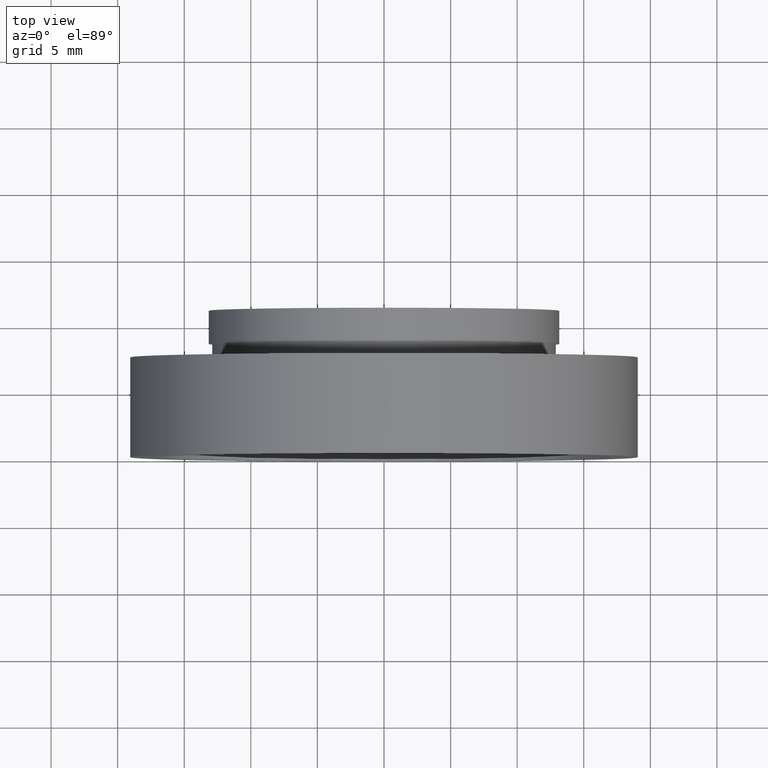
[diagram: clean part render]
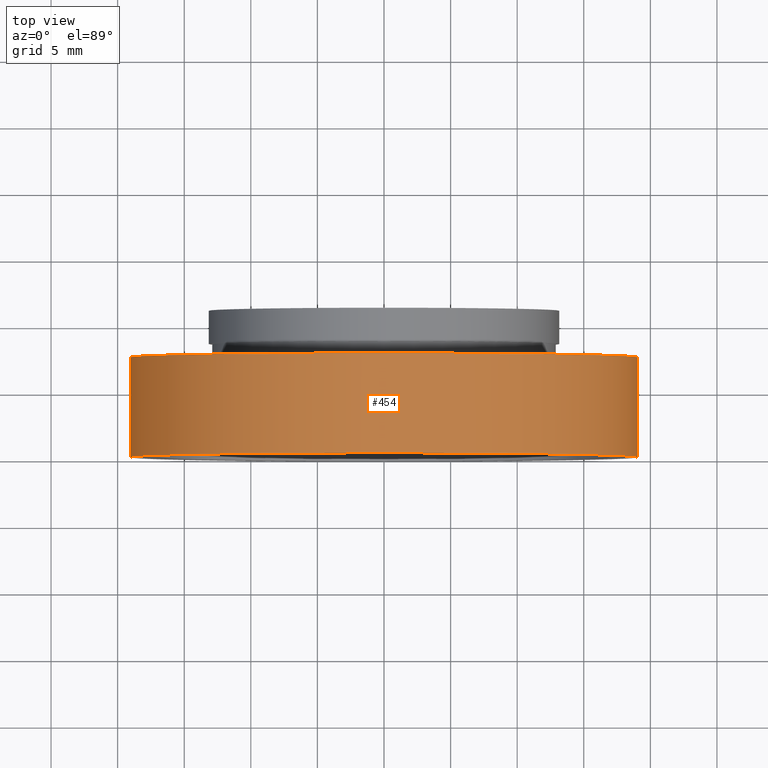
[diagram: same view with one face highlighted and labeled with its STEP entity id]
A machine part, top view. The second image highlights one B-rep face of the part: STEP entity #454.
In plain terms, the highlighted cylindrical surface (partial cylindrical patch) has radius 19.05 mm, axis along (-0, 1, -0).
Its self-contained STEP definition (entity closure, byte-faithful):
#4 = CIRCLE ( 'NONE', #327, 19.04999999999999700 ) ;
#13 = DIRECTION ( 'NONE',  ( -1.000000000000000000, -1.224646799147351000E-016, 0.0000000000000000000 ) ) ;
#26 = EDGE_CURVE ( 'NONE', #590, #112, #105, .T. ) ;
#32 = DIRECTION ( 'NONE',  ( -1.224646799147351000E-016, 1.000000000000000000, -0.0000000000000000000 ) ) ;
#34 = ORIENTED_EDGE ( 'NONE', *, *, #26, .F. ) ;
#56 = ORIENTED_EDGE ( 'NONE', *, *, #233, .F. ) ;
#58 = VERTEX_POINT ( 'NONE', #561 ) ;
#72 = CARTESIAN_POINT ( 'NONE',  ( 19.05000000000000100, 7.500000000000000900, 2.332952152375707600E-015 ) ) ;
#105 = CIRCLE ( 'NONE', #372, 19.05000000000000100 ) ;
#109 = DIRECTION ( 'NONE',  ( -1.000000000000000000, -1.821231995776175700E-016, 0.0000000000000000000 ) ) ;
#112 = VERTEX_POINT ( 'NONE', #72 ) ;
#141 = CARTESIAN_POINT ( 'NONE',  ( -19.04999999999999400, -5.802399104329317500E-015, 0.0000000000000000000 ) ) ;
#158 = FACE_OUTER_BOUND ( 'NONE', #282, .T. ) ;
#225 = VERTEX_POINT ( 'NONE', #141 ) ;
#226 = VECTOR ( 'NONE', #410, 1000.000000000000000 ) ;
#233 = EDGE_CURVE ( 'NONE', #225, #590, #575, .T. ) ;
#239 = DIRECTION ( 'NONE',  ( -1.224646799147351000E-016, 1.000000000000000000, -0.0000000000000000000 ) ) ;
#241 = ORIENTED_EDGE ( 'NONE', *, *, #615, .T. ) ;
#266 = CARTESIAN_POINT ( 'NONE',  ( 1.149455719078122700E-015, 7.499999999999998200, 0.0000000000000000000 ) ) ;
#282 = EDGE_LOOP ( 'NONE', ( #598, #241, #34, #56 ) ) ;
#283 = LINE ( 'NONE', #359, #226 ) ;
#327 = AXIS2_PLACEMENT_3D ( 'NONE', #462, #552, #13 ) ;
#340 = CARTESIAN_POINT ( 'NONE',  ( 0.0000000000000000000, 16.88601823708207700, 0.0000000000000000000 ) ) ;
#359 = CARTESIAN_POINT ( 'NONE',  ( 19.04999999999999700, 16.88601823708208000, 2.332952152375707300E-015 ) ) ;
#372 = AXIS2_PLACEMENT_3D ( 'NONE', #266, #32, #562 ) ;
#406 = CARTESIAN_POINT ( 'NONE',  ( -19.05000000000000100, 7.499999999999995600, 0.0000000000000000000 ) ) ;
#410 = DIRECTION ( 'NONE',  ( -1.224646799147351000E-016, 1.000000000000000000, -0.0000000000000000000 ) ) ;
#442 = AXIS2_PLACEMENT_3D ( 'NONE', #340, #452, #109 ) ;
#452 = DIRECTION ( 'NONE',  ( -1.224646799147351000E-016, 1.000000000000000000, -0.0000000000000000000 ) ) ;
#454 = ADVANCED_FACE ( 'NONE', ( #158 ), #599, .T. ) ;
#462 = CARTESIAN_POINT ( 'NONE',  ( 2.067940818438636500E-015, -3.469446951953614200E-015, 0.0000000000000000000 ) ) ;
#476 = VECTOR ( 'NONE', #239, 1000.000000000000000 ) ;
#523 = EDGE_CURVE ( 'NONE', #225, #58, #4, .T. ) ;
#528 = CARTESIAN_POINT ( 'NONE',  ( -19.04999999999999700, 16.88601823708207300, 0.0000000000000000000 ) ) ;
#552 = DIRECTION ( 'NONE',  ( -1.224646799147351000E-016, 1.000000000000000000, -0.0000000000000000000 ) ) ;
#561 = CARTESIAN_POINT ( 'NONE',  ( 19.05000000000000100, -1.136494799577911100E-015, 2.332952152375707600E-015 ) ) ;
#562 = DIRECTION ( 'NONE',  ( -1.000000000000000000, -1.365923996832131600E-016, 0.0000000000000000000 ) ) ;
#575 = LINE ( 'NONE', #528, #476 ) ;
#590 = VERTEX_POINT ( 'NONE', #406 ) ;
#598 = ORIENTED_EDGE ( 'NONE', *, *, #523, .T. ) ;
#599 = CYLINDRICAL_SURFACE ( 'NONE', #442, 19.04999999999999700 ) ;
#615 = EDGE_CURVE ( 'NONE', #58, #112, #283, .T. ) ;